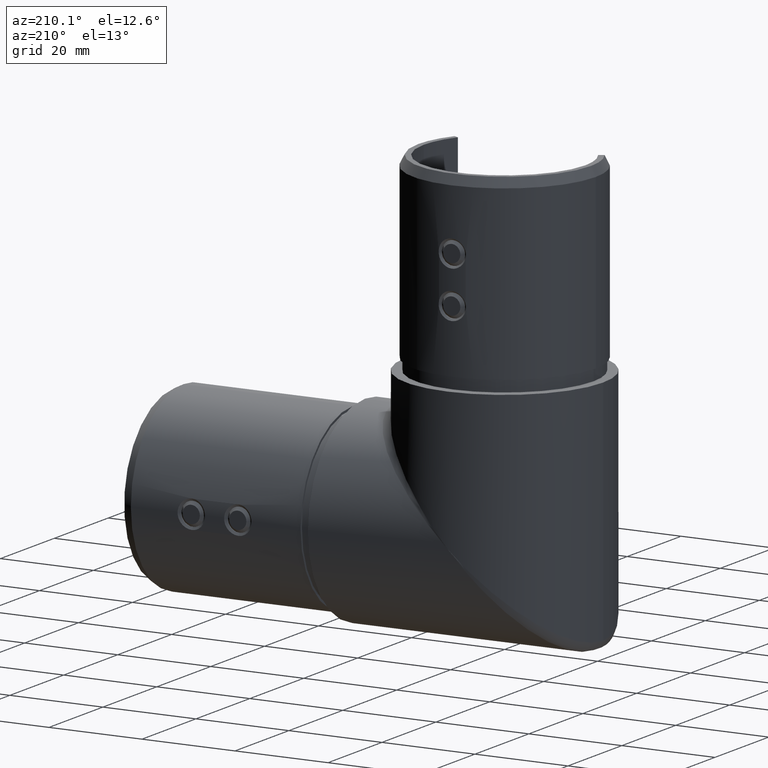
[diagram: clean part render]
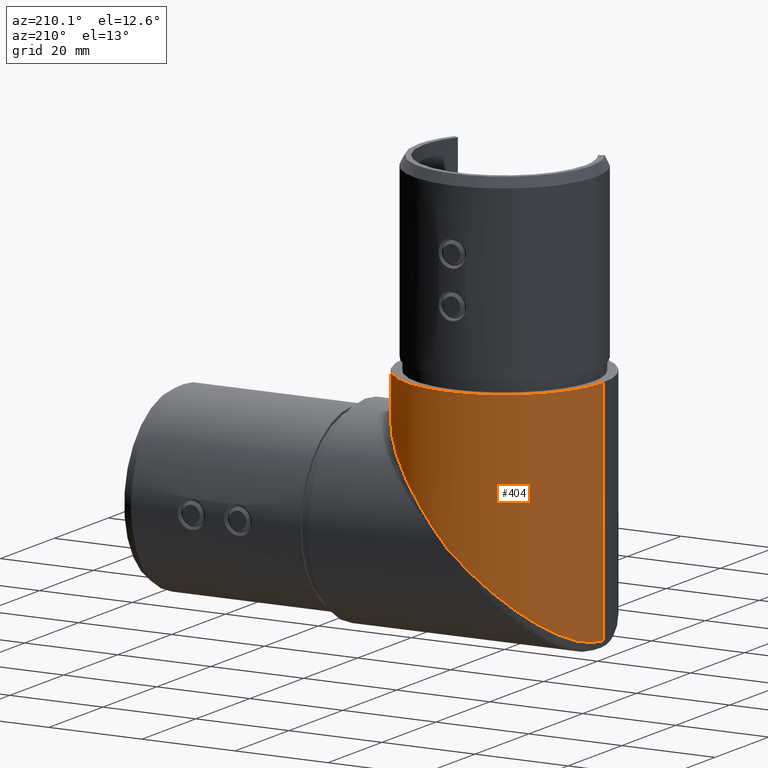
[diagram: same view with one face highlighted and labeled with its STEP entity id]
A machine part, auxiliary view. The second image highlights one B-rep face of the part: STEP entity #404.
In plain terms, the highlighted cylindrical surface (partial cylindrical patch) has radius 21.2 mm, axis along (0, 0, 1).
Its self-contained STEP definition (entity closure, byte-faithful):
#2 = CARTESIAN_POINT ( 'NONE',  ( -3.894376821288583500E-015, 21.20000000000000600, -3.894376821288583500E-015 ) ) ;
#139 = VERTEX_POINT ( 'NONE', #4117 ) ;
#203 = CARTESIAN_POINT ( 'NONE',  ( 0.0000000000000000000, 0.0000000000000000000, 30.00000000000000000 ) ) ;
#404 = ADVANCED_FACE ( 'NONE', ( #15162 ), #7099, .T. ) ;
#527 = VERTEX_POINT ( 'NONE', #3193 ) ;
#763 = CARTESIAN_POINT ( 'NONE',  ( -21.20000000000000300, 2.596251214192389200E-015, -57.39040070574888100 ) ) ;
#815 = LINE ( 'NONE', #763, #13798 ) ;
#862 = AXIS2_PLACEMENT_3D ( 'NONE', #203, #16804, #18486 ) ;
#1939 = EDGE_CURVE ( 'NONE', #16241, #14482, #16639, .T. ) ;
#2063 = EDGE_CURVE ( 'NONE', #11253, #16241, #815, .T. ) ;
#2079 = ORIENTED_EDGE ( 'NONE', *, *, #1939, .T. ) ;
#2547 = LINE ( 'NONE', #12011, #18893 ) ;
#3193 = CARTESIAN_POINT ( 'NONE',  ( -3.894376821288583500E-015, 21.20000000000000600, -3.894376821288583500E-015 ) ) ;
#3329 = CARTESIAN_POINT ( 'NONE',  ( 21.20000000000000300, 0.0000000000000000000, 23.20000000000001400 ) ) ;
#3937 = ORIENTED_EDGE ( 'NONE', *, *, #12825, .T. ) ;
#4117 = CARTESIAN_POINT ( 'NONE',  ( 21.20000000000000300, 0.0000000000000000000, 23.20000000000001400 ) ) ;
#4266 =( BOUNDED_CURVE ( )  B_SPLINE_CURVE ( 3, ( #3329, #8278, #13087, #2 ),
 .UNSPECIFIED., .F., .T. ) 
 B_SPLINE_CURVE_WITH_KNOTS ( ( 4, 4 ),
 ( 0.0000000000000000000, 1.570796326794896800 ),
 .UNSPECIFIED. ) 
 CURVE ( )  GEOMETRIC_REPRESENTATION_ITEM ( )  RATIONAL_B_SPLINE_CURVE ( ( 1.000000000000000000, 0.8047378541243649400, 0.8047378541243649400, 1.000000000000000000 ) ) 
 REPRESENTATION_ITEM ( '' )  );
#5586 = CARTESIAN_POINT ( 'NONE',  ( -3.894376821288583500E-015, 21.20000000000000600, -3.894376821288583500E-015 ) ) ;
#6600 = ORIENTED_EDGE ( 'NONE', *, *, #18368, .F. ) ;
#6607 = ORIENTED_EDGE ( 'NONE', *, *, #2063, .T. ) ;
#7099 = CYLINDRICAL_SURFACE ( 'NONE', #19821, 21.20000000000000300 ) ;
#7287 = CARTESIAN_POINT ( 'NONE',  ( -12.41867247769038400, 21.20000000000000300, -11.24709960243657700 ) ) ;
#8278 = CARTESIAN_POINT ( 'NONE',  ( 21.19999999999999900, 12.41867247769038600, 23.20000000000001000 ) ) ;
#10280 = DIRECTION ( 'NONE',  ( -0.0000000000000000000, -0.0000000000000000000, 1.000000000000000000 ) ) ;
#11253 = VERTEX_POINT ( 'NONE', #16152 ) ;
#12011 = CARTESIAN_POINT ( 'NONE',  ( 21.20000000000000300, 0.0000000000000000000, -57.39040070574888100 ) ) ;
#12413 = DIRECTION ( 'NONE',  ( -0.0000000000000000000, -0.0000000000000000000, 1.000000000000000000 ) ) ;
#12528 =( BOUNDED_CURVE ( )  B_SPLINE_CURVE ( 3, ( #5586, #7287, #20931, #19025 ),
 .UNSPECIFIED., .F., .T. ) 
 B_SPLINE_CURVE_WITH_KNOTS ( ( 4, 4 ),
 ( 1.570796326794896800, 3.141592653589793100 ),
 .UNSPECIFIED. ) 
 CURVE ( )  GEOMETRIC_REPRESENTATION_ITEM ( )  RATIONAL_B_SPLINE_CURVE ( ( 1.000000000000000000, 0.8047378541243650500, 0.8047378541243650500, 1.000000000000000000 ) ) 
 REPRESENTATION_ITEM ( '' )  );
#12825 = EDGE_CURVE ( 'NONE', #139, #527, #4266, .T. ) ;
#13087 = CARTESIAN_POINT ( 'NONE',  ( 12.41867247769038200, 21.19999999999999900, 13.59024535294419400 ) ) ;
#13798 = VECTOR ( 'NONE', #12413, 1000.000000000000000 ) ;
#14482 = VERTEX_POINT ( 'NONE', #14520 ) ;
#14520 = CARTESIAN_POINT ( 'NONE',  ( 21.20000000000000300, 0.0000000000000000000, 30.00000000000000000 ) ) ;
#14752 = DIRECTION ( 'NONE',  ( 1.000000000000000000, 0.0000000000000000000, 0.0000000000000000000 ) ) ;
#15162 = FACE_OUTER_BOUND ( 'NONE', #17038, .T. ) ;
#15823 = CARTESIAN_POINT ( 'NONE',  ( -21.20000000000000300, 2.596251214192389200E-015, 30.00000000000000000 ) ) ;
#16152 = CARTESIAN_POINT ( 'NONE',  ( -21.20000000000000300, 2.596251214192389200E-015, -19.20000000000000300 ) ) ;
#16241 = VERTEX_POINT ( 'NONE', #15823 ) ;
#16639 = CIRCLE ( 'NONE', #862, 21.20000000000000300 ) ;
#16804 = DIRECTION ( 'NONE',  ( 0.0000000000000000000, 0.0000000000000000000, -1.000000000000000000 ) ) ;
#16893 = ORIENTED_EDGE ( 'NONE', *, *, #21040, .T. ) ;
#17038 = EDGE_LOOP ( 'NONE', ( #16893, #6607, #2079, #6600, #3937 ) ) ;
#18140 = CARTESIAN_POINT ( 'NONE',  ( 0.0000000000000000000, 0.0000000000000000000, -57.39040070574888100 ) ) ;
#18275 = DIRECTION ( 'NONE',  ( -0.0000000000000000000, -0.0000000000000000000, 1.000000000000000000 ) ) ;
#18368 = EDGE_CURVE ( 'NONE', #139, #14482, #2547, .T. ) ;
#18486 = DIRECTION ( 'NONE',  ( -1.000000000000000000, 0.0000000000000000000, 0.0000000000000000000 ) ) ;
#18893 = VECTOR ( 'NONE', #10280, 1000.000000000000000 ) ;
#19025 = CARTESIAN_POINT ( 'NONE',  ( -21.20000000000000300, 2.596251214192389200E-015, -19.20000000000000300 ) ) ;
#19821 = AXIS2_PLACEMENT_3D ( 'NONE', #18140, #18275, #14752 ) ;
#20931 = CARTESIAN_POINT ( 'NONE',  ( -21.20000000000000300, 12.41867247769038800, -19.19999999999999900 ) ) ;
#21040 = EDGE_CURVE ( 'NONE', #527, #11253, #12528, .T. ) ;